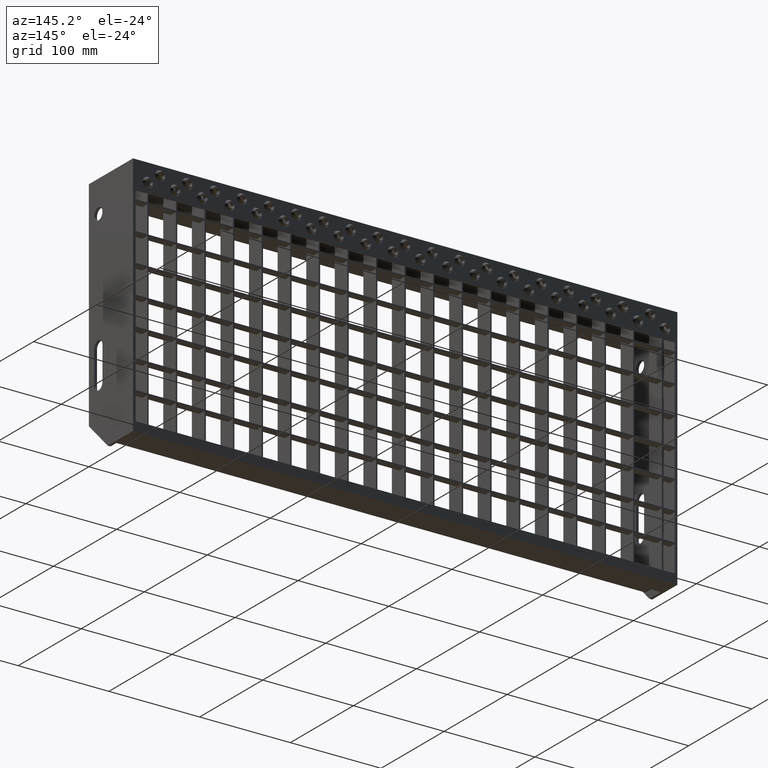
[diagram: clean part render]
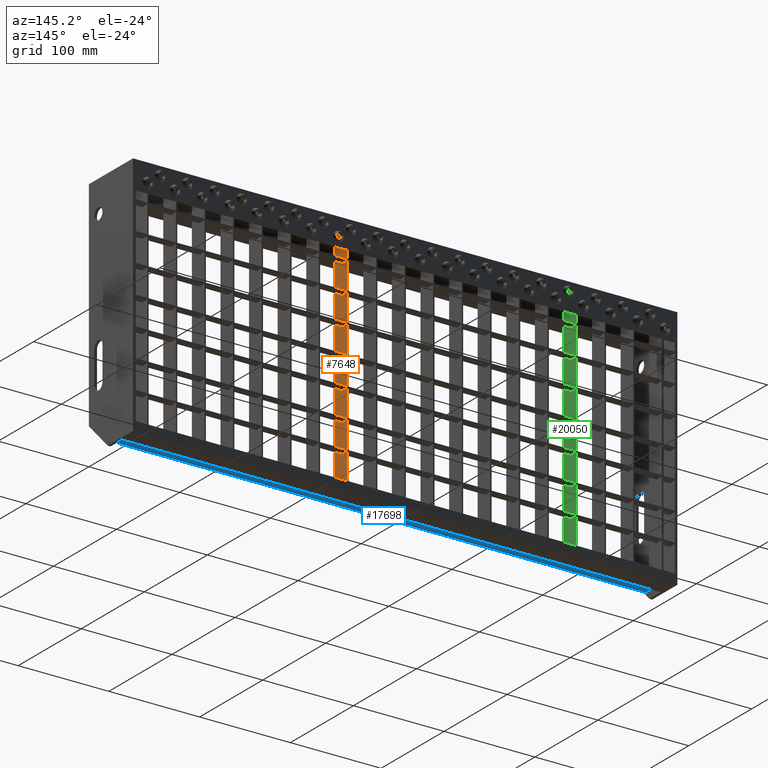
[diagram: same view with three faces highlighted in distinct colors, each labeled with its STEP entity id]
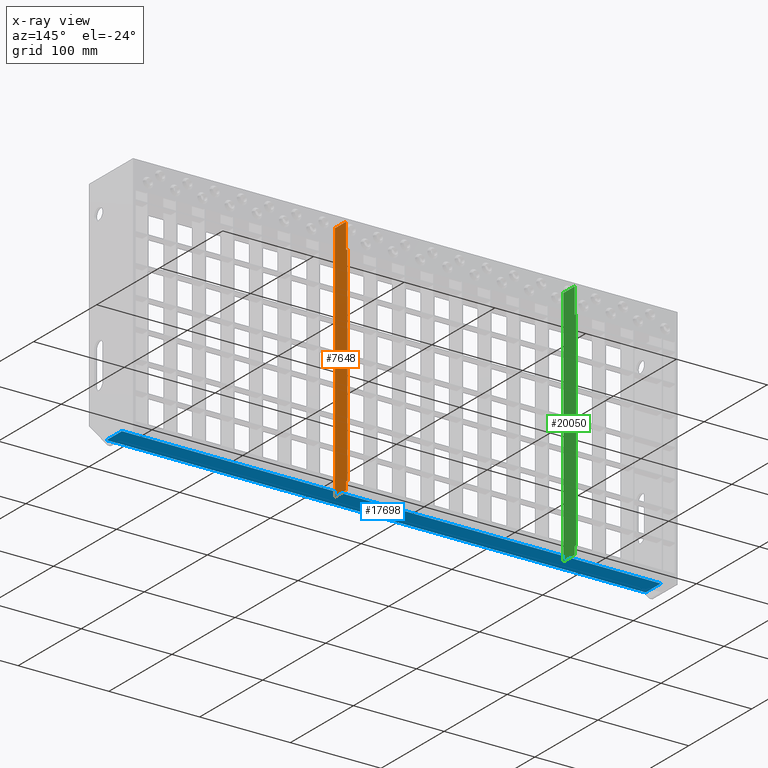
[diagram: x-ray of the same camera — body ghosted, the three highlighted faces saturated]
A machine part, auxiliary view with three faces highlighted in distinct colors.
The next image is the same camera in x-ray (body ghosted, the three faces saturated) — at least one of them is partly hidden behind the body in this view.
Their STEP definitions:

[orange] entity #7648 — the highlighted planar face has unit normal (-1, 0, 0).
#101 = DIRECTION ( 'NONE',  ( 0.0000000000000000000, 0.0000000000000000000, 1.000000000000000000 ) ) ;
#673 = ORIENTED_EDGE ( 'NONE', *, *, #18067, .T. ) ;
#1227 = VERTEX_POINT ( 'NONE', #11027 ) ;
#1540 = CARTESIAN_POINT ( 'NONE',  ( 63.75000000000000000, 70.00000000000000000, -29.99999999999999300 ) ) ;
#1973 = PLANE ( 'NONE',  #24089 ) ;
#1993 = EDGE_CURVE ( 'NONE', #3287, #4465, #19454, .T. ) ;
#2177 = CARTESIAN_POINT ( 'NONE',  ( 63.75000000000000000, 70.00000000000000000, -29.99999999999999300 ) ) ;
#2231 = DIRECTION ( 'NONE',  ( 0.0000000000000000000, 0.0000000000000000000, 1.000000000000000000 ) ) ;
#3287 = VERTEX_POINT ( 'NONE', #11039 ) ;
#3346 = LINE ( 'NONE', #2177, #10746 ) ;
#4068 = DIRECTION ( 'NONE',  ( 0.0000000000000000000, 1.632680918566405200E-015, 1.000000000000000000 ) ) ;
#4465 = VERTEX_POINT ( 'NONE', #11468 ) ;
#5504 = EDGE_CURVE ( 'NONE', #21957, #21466, #14935, .T. ) ;
#5702 = EDGE_CURVE ( 'NONE', #18131, #17944, #6853, .T. ) ;
#5954 = CARTESIAN_POINT ( 'NONE',  ( 63.75000000000000000, 67.99999999999997200, -268.0000000000000000 ) ) ;
#6019 = CARTESIAN_POINT ( 'NONE',  ( 63.75000000000000000, 50.00000000000000000, -1.999999999999993600 ) ) ;
#6024 = CARTESIAN_POINT ( 'NONE',  ( 63.75000000000000000, 67.99999999999998600, -259.5000000000000000 ) ) ;
#6073 = ORIENTED_EDGE ( 'NONE', *, *, #19164, .T. ) ;
#6793 = EDGE_CURVE ( 'NONE', #11767, #19947, #7751, .T. ) ;
#6797 = VECTOR ( 'NONE', #8298, 1000.000000000000000 ) ;
#6853 = LINE ( 'NONE', #18313, #20721 ) ;
#7038 = EDGE_CURVE ( 'NONE', #21466, #1227, #21922, .T. ) ;
#7648 = ADVANCED_FACE ( 'NONE', ( #9845 ), #1973, .F. ) ;
#7751 = LINE ( 'NONE', #25401, #25323 ) ;
#7912 = DIRECTION ( 'NONE',  ( 0.0000000000000000000, 0.0000000000000000000, -1.000000000000000000 ) ) ;
#7934 = LINE ( 'NONE', #5954, #15988 ) ;
#7979 = VECTOR ( 'NONE', #14718, 1000.000000000000000 ) ;
#8287 = CARTESIAN_POINT ( 'NONE',  ( 63.75000000000000000, 68.00000000000000000, -29.99999999999999300 ) ) ;
#8298 = DIRECTION ( 'NONE',  ( 0.0000000000000000000, 1.000000000000000000, 0.0000000000000000000 ) ) ;
#8726 = CARTESIAN_POINT ( 'NONE',  ( 63.75000000000000000, 50.00000000000000000, -1.999999999999993600 ) ) ;
#9428 = LINE ( 'NONE', #21362, #14403 ) ;
#9845 = FACE_OUTER_BOUND ( 'NONE', #10042, .T. ) ;
#10042 = EDGE_LOOP ( 'NONE', ( #21734, #17020, #18373, #18035, #673, #20323, #20434, #6073, #15721, #20516 ) ) ;
#10746 = VECTOR ( 'NONE', #16003, 1000.000000000000000 ) ;
#11027 = CARTESIAN_POINT ( 'NONE',  ( 63.75000000000000000, 50.00000000000000000, -15.00000000000000000 ) ) ;
#11039 = CARTESIAN_POINT ( 'NONE',  ( 63.75000000000000000, 50.00000000000000000, -268.0000000000000000 ) ) ;
#11468 = CARTESIAN_POINT ( 'NONE',  ( 63.75000000000000000, 67.99999999999997200, -268.0000000000000000 ) ) ;
#11767 = VERTEX_POINT ( 'NONE', #6024 ) ;
#12032 = CARTESIAN_POINT ( 'NONE',  ( 63.75000000000000000, 50.00000000000000000, -1.999999999999993600 ) ) ;
#12174 = EDGE_CURVE ( 'NONE', #3287, #17658, #9428, .T. ) ;
#12339 = CARTESIAN_POINT ( 'NONE',  ( 63.75000000000000000, 68.00000000000000000, -1.999999999999991300 ) ) ;
#12807 = VECTOR ( 'NONE', #101, 1000.000000000000000 ) ;
#13641 = DIRECTION ( 'NONE',  ( 0.0000000000000000000, 1.000000000000000000, 0.0000000000000000000 ) ) ;
#14403 = VECTOR ( 'NONE', #25098, 1000.000000000000000 ) ;
#14458 = EDGE_CURVE ( 'NONE', #17944, #21957, #23868, .T. ) ;
#14718 = DIRECTION ( 'NONE',  ( 0.0000000000000000000, 0.0000000000000000000, -1.000000000000000000 ) ) ;
#14935 = LINE ( 'NONE', #12339, #19522 ) ;
#15721 = ORIENTED_EDGE ( 'NONE', *, *, #6793, .T. ) ;
#15779 = CARTESIAN_POINT ( 'NONE',  ( 63.75000000000000000, 68.00000000000000000, -29.99999999999999300 ) ) ;
#15988 = VECTOR ( 'NONE', #4068, 1000.000000000000000 ) ;
#16003 = DIRECTION ( 'NONE',  ( -0.0000000000000000000, -0.0000000000000000000, 1.000000000000000000 ) ) ;
#17020 = ORIENTED_EDGE ( 'NONE', *, *, #14458, .T. ) ;
#17271 = LINE ( 'NONE', #8726, #7979 ) ;
#17658 = VERTEX_POINT ( 'NONE', #25039 ) ;
#17944 = VERTEX_POINT ( 'NONE', #8287 ) ;
#18035 = ORIENTED_EDGE ( 'NONE', *, *, #7038, .T. ) ;
#18067 = EDGE_CURVE ( 'NONE', #1227, #17658, #17271, .T. ) ;
#18131 = VERTEX_POINT ( 'NONE', #1540 ) ;
#18313 = CARTESIAN_POINT ( 'NONE',  ( 63.75000000000000000, 70.00000000000000000, -29.99999999999999300 ) ) ;
#18373 = ORIENTED_EDGE ( 'NONE', *, *, #5504, .T. ) ;
#18739 = EDGE_CURVE ( 'NONE', #19947, #18131, #3346, .T. ) ;
#19030 = CARTESIAN_POINT ( 'NONE',  ( 63.75000000000000000, 68.00000000000000000, -1.999999999999991300 ) ) ;
#19164 = EDGE_CURVE ( 'NONE', #4465, #11767, #7934, .T. ) ;
#19454 = LINE ( 'NONE', #20125, #6797 ) ;
#19522 = VECTOR ( 'NONE', #24125, 1000.000000000000000 ) ;
#19947 = VERTEX_POINT ( 'NONE', #24201 ) ;
#20125 = CARTESIAN_POINT ( 'NONE',  ( 63.75000000000000000, 50.00000000000000000, -268.0000000000000000 ) ) ;
#20323 = ORIENTED_EDGE ( 'NONE', *, *, #12174, .F. ) ;
#20434 = ORIENTED_EDGE ( 'NONE', *, *, #1993, .T. ) ;
#20516 = ORIENTED_EDGE ( 'NONE', *, *, #18739, .T. ) ;
#20721 = VECTOR ( 'NONE', #22166, 1000.000000000000000 ) ;
#21362 = CARTESIAN_POINT ( 'NONE',  ( 63.75000000000000000, 50.00000000000011400, 0.0000000000000000000 ) ) ;
#21466 = VERTEX_POINT ( 'NONE', #12032 ) ;
#21734 = ORIENTED_EDGE ( 'NONE', *, *, #5702, .T. ) ;
#21899 = CARTESIAN_POINT ( 'NONE',  ( 63.75000000000000000, 0.0000000000000000000, 0.0000000000000000000 ) ) ;
#21922 = LINE ( 'NONE', #6019, #24062 ) ;
#21957 = VERTEX_POINT ( 'NONE', #19030 ) ;
#22166 = DIRECTION ( 'NONE',  ( 0.0000000000000000000, -1.000000000000000000, 0.0000000000000000000 ) ) ;
#23689 = DIRECTION ( 'NONE',  ( -1.000000000000000000, 0.0000000000000000000, 0.0000000000000000000 ) ) ;
#23868 = LINE ( 'NONE', #15779, #12807 ) ;
#24062 = VECTOR ( 'NONE', #7912, 1000.000000000000000 ) ;
#24089 = AXIS2_PLACEMENT_3D ( 'NONE', #21899, #23689, #2231 ) ;
#24125 = DIRECTION ( 'NONE',  ( 0.0000000000000000000, -1.000000000000000000, -1.204669080539449300E-016 ) ) ;
#24201 = CARTESIAN_POINT ( 'NONE',  ( 63.75000000000000000, 70.00000000000000000, -259.5000000000000000 ) ) ;
#25039 = CARTESIAN_POINT ( 'NONE',  ( 63.75000000000000000, 50.00000000000000000, -259.5000000000000000 ) ) ;
#25098 = DIRECTION ( 'NONE',  ( 0.0000000000000000000, 0.0000000000000000000, 1.000000000000000000 ) ) ;
#25323 = VECTOR ( 'NONE', #13641, 1000.000000000000000 ) ;
#25401 = CARTESIAN_POINT ( 'NONE',  ( 63.75000000000000000, 67.99999999999998600, -259.5000000000000000 ) ) ;

[blue] entity #17698 — the highlighted planar face has unit normal (0, 0, 1).
#480 = VECTOR ( 'NONE', #17139, 1000.000000000000000 ) ;
#498 = ORIENTED_EDGE ( 'NONE', *, *, #12553, .T. ) ;
#857 = DIRECTION ( 'NONE',  ( 1.000000000000000000, -0.0000000000000000000, -0.0000000000000000000 ) ) ;
#1422 = DIRECTION ( 'NONE',  ( 0.0000000000000000000, 0.0000000000000000000, 1.000000000000000000 ) ) ;
#3764 = VERTEX_POINT ( 'NONE', #18430 ) ;
#5841 = FACE_OUTER_BOUND ( 'NONE', #14003, .T. ) ;
#7629 = CARTESIAN_POINT ( 'NONE',  ( -373.1577310586390000, 48.00000000000011400, -261.5000000000000000 ) ) ;
#7720 = DIRECTION ( 'NONE',  ( 1.000000000000000000, 0.0000000000000000000, -0.0000000000000000000 ) ) ;
#7978 = CARTESIAN_POINT ( 'NONE',  ( -297.0000000000000000, 48.00000000000011400, -261.5000000000000000 ) ) ;
#8912 = LINE ( 'NONE', #22516, #11406 ) ;
#9334 = AXIS2_PLACEMENT_3D ( 'NONE', #7629, #1422, #7720 ) ;
#9407 = LINE ( 'NONE', #18921, #11604 ) ;
#9493 = CARTESIAN_POINT ( 'NONE',  ( 297.0000000000000000, 48.00000000000011400, -261.5000000000000000 ) ) ;
#9733 = VECTOR ( 'NONE', #13317, 1000.000000000000000 ) ;
#10117 = ORIENTED_EDGE ( 'NONE', *, *, #10929, .F. ) ;
#10501 = VERTEX_POINT ( 'NONE', #7978 ) ;
#10929 = EDGE_CURVE ( 'NONE', #3764, #23529, #23931, .T. ) ;
#11406 = VECTOR ( 'NONE', #24673, 1000.000000000000000 ) ;
#11601 = EDGE_CURVE ( 'NONE', #20599, #23529, #22082, .T. ) ;
#11604 = VECTOR ( 'NONE', #857, 1000.000000000000000 ) ;
#12529 = CARTESIAN_POINT ( 'NONE',  ( 297.0000000000000000, 23.62132034355957800, -261.5000000000000000 ) ) ;
#12553 = EDGE_CURVE ( 'NONE', #10501, #20599, #9407, .T. ) ;
#13317 = DIRECTION ( 'NONE',  ( 0.0000000000000000000, -1.000000000000000000, 0.0000000000000000000 ) ) ;
#13669 = ORIENTED_EDGE ( 'NONE', *, *, #11601, .T. ) ;
#14003 = EDGE_LOOP ( 'NONE', ( #10117, #22257, #498, #13669 ) ) ;
#17139 = DIRECTION ( 'NONE',  ( 1.000000000000000000, -0.0000000000000000000, -0.0000000000000000000 ) ) ;
#17698 = ADVANCED_FACE ( 'NONE', ( #5841 ), #19531, .F. ) ;
#17992 = EDGE_CURVE ( 'NONE', #3764, #10501, #8912, .T. ) ;
#18430 = CARTESIAN_POINT ( 'NONE',  ( -297.0000000000000000, 23.62132034355955000, -261.5000000000000000 ) ) ;
#18921 = CARTESIAN_POINT ( 'NONE',  ( -373.1577310586390000, 48.00000000000011400, -261.5000000000000000 ) ) ;
#18950 = CARTESIAN_POINT ( 'NONE',  ( -373.1577310586390000, 23.62132034355957800, -261.5000000000000000 ) ) ;
#19036 = CARTESIAN_POINT ( 'NONE',  ( 297.0000000000000000, 48.00000000000011400, -261.5000000000000000 ) ) ;
#19531 = PLANE ( 'NONE',  #9334 ) ;
#20599 = VERTEX_POINT ( 'NONE', #19036 ) ;
#22082 = LINE ( 'NONE', #9493, #9733 ) ;
#22257 = ORIENTED_EDGE ( 'NONE', *, *, #17992, .T. ) ;
#22516 = CARTESIAN_POINT ( 'NONE',  ( -297.0000000000000000, 48.00000000000011400, -261.5000000000000000 ) ) ;
#23529 = VERTEX_POINT ( 'NONE', #12529 ) ;
#23931 = LINE ( 'NONE', #18950, #480 ) ;
#24673 = DIRECTION ( 'NONE',  ( 0.0000000000000000000, 1.000000000000000000, 0.0000000000000000000 ) ) ;

[green] entity #20050 — the highlighted planar face has unit normal (-1, 0, 0).
#402 = CARTESIAN_POINT ( 'NONE',  ( -188.2500000000000000, 50.00000000000000000, -268.0000000000000000 ) ) ;
#424 = VERTEX_POINT ( 'NONE', #2394 ) ;
#1067 = ORIENTED_EDGE ( 'NONE', *, *, #16582, .T. ) ;
#1112 = DIRECTION ( 'NONE',  ( 0.0000000000000000000, 0.0000000000000000000, 1.000000000000000000 ) ) ;
#2037 = CARTESIAN_POINT ( 'NONE',  ( -188.2500000000000000, 67.99999999999998600, -259.5000000000000000 ) ) ;
#2394 = CARTESIAN_POINT ( 'NONE',  ( -188.2500000000000000, 67.99999999999998600, -259.5000000000000000 ) ) ;
#2592 = CARTESIAN_POINT ( 'NONE',  ( -188.2500000000000000, 70.00000000000000000, -259.5000000000000000 ) ) ;
#2793 = VECTOR ( 'NONE', #21678, 1000.000000000000000 ) ;
#2811 = LINE ( 'NONE', #7404, #18564 ) ;
#3691 = LINE ( 'NONE', #23396, #7975 ) ;
#3977 = LINE ( 'NONE', #17982, #24323 ) ;
#4038 = LINE ( 'NONE', #25545, #2793 ) ;
#4233 = VERTEX_POINT ( 'NONE', #21323 ) ;
#5159 = DIRECTION ( 'NONE',  ( 0.0000000000000000000, 0.0000000000000000000, 1.000000000000000000 ) ) ;
#5579 = VECTOR ( 'NONE', #21625, 1000.000000000000000 ) ;
#5768 = CARTESIAN_POINT ( 'NONE',  ( -188.2500000000000000, 70.00000000000000000, -29.99999999999999300 ) ) ;
#6150 = DIRECTION ( 'NONE',  ( 0.0000000000000000000, -1.000000000000000000, -1.204669080539449300E-016 ) ) ;
#6842 = EDGE_CURVE ( 'NONE', #18952, #4233, #18550, .T. ) ;
#7020 = LINE ( 'NONE', #13054, #21511 ) ;
#7229 = DIRECTION ( 'NONE',  ( 0.0000000000000000000, -1.000000000000000000, 0.0000000000000000000 ) ) ;
#7404 = CARTESIAN_POINT ( 'NONE',  ( -188.2500000000000000, 70.00000000000000000, -29.99999999999999300 ) ) ;
#7975 = VECTOR ( 'NONE', #19458, 1000.000000000000000 ) ;
#8168 = ORIENTED_EDGE ( 'NONE', *, *, #22075, .T. ) ;
#8259 = VECTOR ( 'NONE', #11971, 1000.000000000000000 ) ;
#8288 = VERTEX_POINT ( 'NONE', #16456 ) ;
#8708 = VERTEX_POINT ( 'NONE', #15058 ) ;
#9664 = EDGE_CURVE ( 'NONE', #424, #18952, #24627, .T. ) ;
#10212 = ORIENTED_EDGE ( 'NONE', *, *, #24807, .T. ) ;
#11971 = DIRECTION ( 'NONE',  ( 0.0000000000000000000, 1.000000000000000000, 0.0000000000000000000 ) ) ;
#13054 = CARTESIAN_POINT ( 'NONE',  ( -188.2500000000000000, 50.00000000000000000, -1.999999999999993600 ) ) ;
#13428 = VERTEX_POINT ( 'NONE', #14174 ) ;
#14011 = ORIENTED_EDGE ( 'NONE', *, *, #20231, .T. ) ;
#14174 = CARTESIAN_POINT ( 'NONE',  ( -188.2500000000000000, 68.00000000000000000, -29.99999999999999300 ) ) ;
#14235 = AXIS2_PLACEMENT_3D ( 'NONE', #18905, #18724, #5159 ) ;
#15028 = PLANE ( 'NONE',  #14235 ) ;
#15058 = CARTESIAN_POINT ( 'NONE',  ( -188.2500000000000000, 68.00000000000000000, -1.999999999999991300 ) ) ;
#16048 = ORIENTED_EDGE ( 'NONE', *, *, #17835, .T. ) ;
#16456 = CARTESIAN_POINT ( 'NONE',  ( -188.2500000000000000, 50.00000000000000000, -1.999999999999993600 ) ) ;
#16582 = EDGE_CURVE ( 'NONE', #18169, #424, #4038, .T. ) ;
#16588 = ORIENTED_EDGE ( 'NONE', *, *, #6842, .T. ) ;
#17089 = CARTESIAN_POINT ( 'NONE',  ( -188.2500000000000000, 68.00000000000000000, -29.99999999999999300 ) ) ;
#17835 = EDGE_CURVE ( 'NONE', #8708, #8288, #3977, .T. ) ;
#17982 = CARTESIAN_POINT ( 'NONE',  ( -188.2500000000000000, 68.00000000000000000, -1.999999999999991300 ) ) ;
#18169 = VERTEX_POINT ( 'NONE', #25320 ) ;
#18550 = LINE ( 'NONE', #5768, #5579 ) ;
#18564 = VECTOR ( 'NONE', #7229, 1000.000000000000000 ) ;
#18724 = DIRECTION ( 'NONE',  ( -1.000000000000000000, 0.0000000000000000000, 0.0000000000000000000 ) ) ;
#18905 = CARTESIAN_POINT ( 'NONE',  ( -188.2500000000000000, 0.0000000000000000000, 0.0000000000000000000 ) ) ;
#18952 = VERTEX_POINT ( 'NONE', #2592 ) ;
#19458 = DIRECTION ( 'NONE',  ( 0.0000000000000000000, 1.000000000000000000, 0.0000000000000000000 ) ) ;
#19607 = LINE ( 'NONE', #17089, #25447 ) ;
#19888 = VERTEX_POINT ( 'NONE', #402 ) ;
#20050 = ADVANCED_FACE ( 'NONE', ( #22231 ), #15028, .F. ) ;
#20231 = EDGE_CURVE ( 'NONE', #4233, #13428, #2811, .T. ) ;
#21323 = CARTESIAN_POINT ( 'NONE',  ( -188.2500000000000000, 70.00000000000000000, -29.99999999999999300 ) ) ;
#21511 = VECTOR ( 'NONE', #24903, 1000.000000000000000 ) ;
#21625 = DIRECTION ( 'NONE',  ( -0.0000000000000000000, -0.0000000000000000000, 1.000000000000000000 ) ) ;
#21678 = DIRECTION ( 'NONE',  ( 0.0000000000000000000, 1.632680918566405200E-015, 1.000000000000000000 ) ) ;
#22075 = EDGE_CURVE ( 'NONE', #19888, #18169, #3691, .T. ) ;
#22231 = FACE_OUTER_BOUND ( 'NONE', #22779, .T. ) ;
#22779 = EDGE_LOOP ( 'NONE', ( #14011, #10212, #16048, #22934, #8168, #1067, #24942, #16588 ) ) ;
#22934 = ORIENTED_EDGE ( 'NONE', *, *, #23619, .T. ) ;
#23396 = CARTESIAN_POINT ( 'NONE',  ( -188.2500000000000000, 50.00000000000000000, -268.0000000000000000 ) ) ;
#23619 = EDGE_CURVE ( 'NONE', #8288, #19888, #7020, .T. ) ;
#24323 = VECTOR ( 'NONE', #6150, 1000.000000000000000 ) ;
#24627 = LINE ( 'NONE', #2037, #8259 ) ;
#24807 = EDGE_CURVE ( 'NONE', #13428, #8708, #19607, .T. ) ;
#24903 = DIRECTION ( 'NONE',  ( 0.0000000000000000000, 0.0000000000000000000, -1.000000000000000000 ) ) ;
#24942 = ORIENTED_EDGE ( 'NONE', *, *, #9664, .T. ) ;
#25320 = CARTESIAN_POINT ( 'NONE',  ( -188.2500000000000000, 67.99999999999997200, -268.0000000000000000 ) ) ;
#25447 = VECTOR ( 'NONE', #1112, 1000.000000000000000 ) ;
#25545 = CARTESIAN_POINT ( 'NONE',  ( -188.2500000000000000, 67.99999999999997200, -268.0000000000000000 ) ) ;